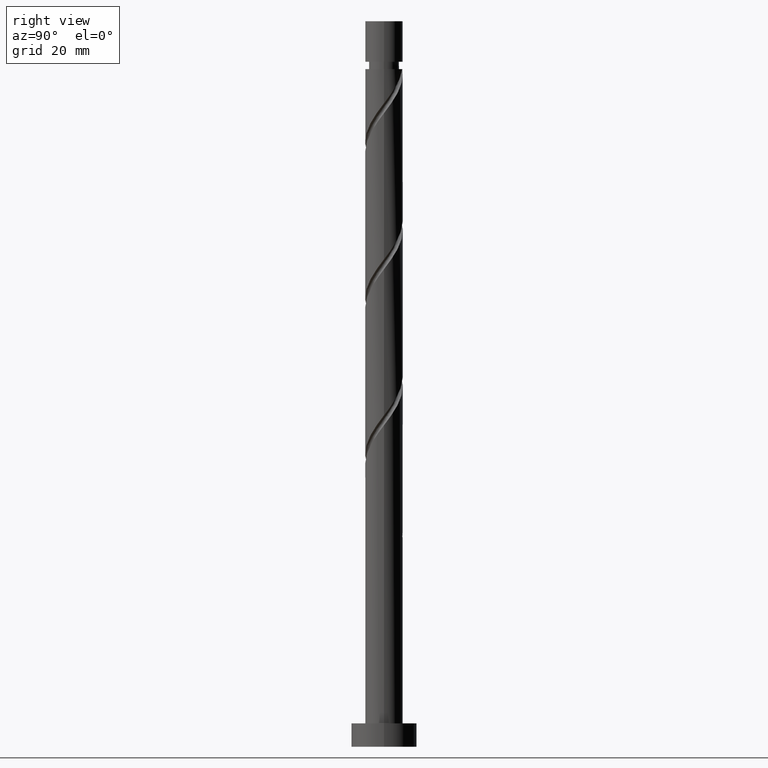
[diagram: clean part render]
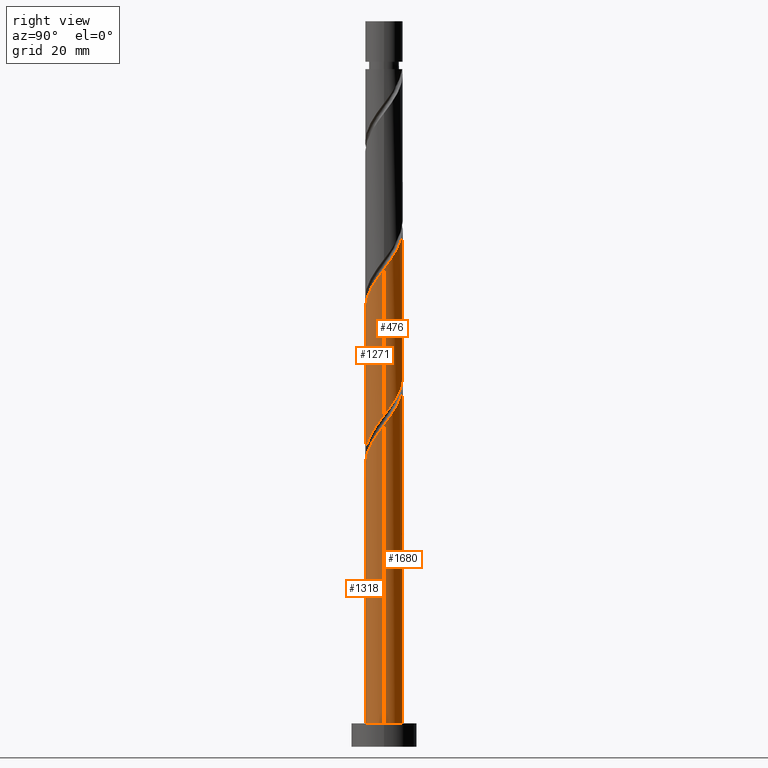
[diagram: same view with one multi-face feature highlighted, each face labeled with its STEP entity id]
A machine part, right view. The highlighted faces form ONE feature: a constant-radius fillet chain: 4 tangent blend faces with common blend radius 4 mm. The faces share edges in the B-rep.
Their STEP definitions:
[1] entity #1318 (Cylinder):
#15 = CARTESIAN_POINT ( 'NONE',  ( 4.000000000000006217, -0.1229678066307010459, 68.52512430396971865 ) ) ;
#68 = CARTESIAN_POINT ( 'NONE',  ( -2.996824607992357503, -2.649347517584565992, 55.86296575831904931 ) ) ;
#88 = CARTESIAN_POINT ( 'NONE',  ( 0.000000000000000000, 0.000000000000000000, 5.000000000000000000 ) ) ;
#94 = EDGE_CURVE ( 'NONE', #552, #378, #1333, .T. ) ;
#113 = VECTOR ( 'NONE', #1573, 1000.000000000000000 ) ;
#142 = CARTESIAN_POINT ( 'NONE',  ( 0.000000000000000000, 0.000000000000000000, 155.0000000000000000 ) ) ;
#207 = CARTESIAN_POINT ( 'NONE',  ( -2.209008691072459563, -3.334708473430082698, 57.25185464720792794 ) ) ;
#222 = CARTESIAN_POINT ( 'NONE',  ( -3.920000000000006146, -0.7959899496852959055, 53.08518798054127075 ) ) ;
#257 = CARTESIAN_POINT ( 'NONE',  ( 2.254808073111003175, -3.345617825659334521, 63.50185464720794926 ) ) ;
#334 = AXIS2_PLACEMENT_3D ( 'NONE', #142, #1743, #1356 ) ;
#341 = CARTESIAN_POINT ( 'NONE',  ( -4.000000000000006217, -1.091626264384269838E-15, 52.02162132533119632 ) ) ;
#356 = ORIENTED_EDGE ( 'NONE', *, *, #1159, .T. ) ;
#376 = CARTESIAN_POINT ( 'NONE',  ( 3.960099130553270452, -0.7713189730113449993, 67.66852131387460645 ) ) ;
#378 = VERTEX_POINT ( 'NONE', #1381 ) ;
#395 = CARTESIAN_POINT ( 'NONE',  ( 3.992446597741906800, -0.2457034069343226046, 68.36296575831904931 ) ) ;
#458 = CARTESIAN_POINT ( 'NONE',  ( -4.000000000000006217, -1.091626264384269838E-15, 52.02162132533119632 ) ) ;
#466 = CARTESIAN_POINT ( 'NONE',  ( 1.312067740227888413, -3.815205935069474030, 62.11296575831904931 ) ) ;
#490 = ORIENTED_EDGE ( 'NONE', *, *, #1180, .F. ) ;
#491 = CARTESIAN_POINT ( 'NONE',  ( -2.648031390325384038, -3.043886962058127921, 56.55741020276350639 ) ) ;
#500 = CARTESIAN_POINT ( 'NONE',  ( -0.7713189730113432230, -3.960099130553272229, 59.33518798054127785 ) ) ;
#501 = VECTOR ( 'NONE', #891, 1000.000000000000000 ) ;
#530 = AXIS2_PLACEMENT_3D ( 'NONE', #88, #590, #859 ) ;
#537 = CARTESIAN_POINT ( 'NONE',  ( 2.649347517584565548, -2.996824607992357947, 64.19629909165237791 ) ) ;
#552 = VERTEX_POINT ( 'NONE', #458 ) ;
#560 = CIRCLE ( 'NONE', #530, 4.000000000000000000 ) ;
#590 = DIRECTION ( 'NONE',  ( 0.000000000000000000, 0.000000000000000000, 1.000000000000000000 ) ) ;
#602 = CARTESIAN_POINT ( 'NONE',  ( 0.7959899496852955725, -3.920000000000006146, 61.41852131387459224 ) ) ;
#728 = CARTESIAN_POINT ( 'NONE',  ( -3.815205935069474030, -1.312067740227888635, 53.77963242498570651 ) ) ;
#781 = CARTESIAN_POINT ( 'NONE',  ( 3.792814557677652854, -1.270652482415441709, 66.97407686943017779 ) ) ;
#792 = CARTESIAN_POINT ( 'NONE',  ( 3.625529984802036143, -1.769985991819538196, 66.27963242498573493 ) ) ;
#859 = DIRECTION ( 'NONE',  ( 1.000000000000000000, 0.000000000000000000, 0.000000000000000000 ) ) ;
#891 = DIRECTION ( 'NONE',  ( -0.000000000000000000, -0.000000000000000000, -1.000000000000000000 ) ) ;
#895 = EDGE_CURVE ( 'NONE', #552, #1423, #1631, .T. ) ;
#912 = CARTESIAN_POINT ( 'NONE',  ( 4.000000000000006217, -1.420609522143912636E-15, 68.68828799199785351 ) ) ;
#929 = CYLINDRICAL_SURFACE ( 'NONE', #334, 4.000000000000000000 ) ;
#1012 = CARTESIAN_POINT ( 'NONE',  ( 1.783437906669445239, -3.580411880364402943, 62.80741020276347797 ) ) ;
#1025 = LINE ( 'NONE', #1292, #501 ) ;
#1030 = CARTESIAN_POINT ( 'NONE',  ( -1.769985991819538196, -3.625529984802036587, 57.94629909165239923 ) ) ;
#1109 = ORIENTED_EDGE ( 'NONE', *, *, #94, .T. ) ;
#1139 = CARTESIAN_POINT ( 'NONE',  ( -0.2457034069343206062, -3.992446597741906800, 60.02963242498571361 ) ) ;
#1159 = EDGE_CURVE ( 'NONE', #378, #1205, #560, .T. ) ;
#1180 = EDGE_CURVE ( 'NONE', #1423, #1205, #1025, .T. ) ;
#1196 = EDGE_LOOP ( 'NONE', ( #490, #1597, #1109, #356 ) ) ;
#1205 = VERTEX_POINT ( 'NONE', #1548 ) ;
#1292 = CARTESIAN_POINT ( 'NONE',  ( 4.000000000000000000, 4.898587196589412829E-16, 155.0000000000000000 ) ) ;
#1316 = CARTESIAN_POINT ( 'NONE',  ( -3.345617825659333633, -2.254808073111004951, 55.16852131387461355 ) ) ;
#1318 = ADVANCED_FACE ( 'NONE', ( #1591 ), #929, .T. ) ;
#1333 = LINE ( 'NONE', #1707, #113 ) ;
#1356 = DIRECTION ( 'NONE',  ( -1.000000000000000000, 0.000000000000000000, 0.000000000000000000 ) ) ;
#1381 = CARTESIAN_POINT ( 'NONE',  ( -4.000000000000000000, 0.000000000000000000, 5.000000000000000000 ) ) ;
#1423 = VERTEX_POINT ( 'NONE', #912 ) ;
#1434 = CARTESIAN_POINT ( 'NONE',  ( -4.000000000000007994, -0.4020151261036785106, 52.55504769452046077 ) ) ;
#1456 = CARTESIAN_POINT ( 'NONE',  ( 3.334708473430080922, -2.209008691072461339, 65.58518798054127785 ) ) ;
#1464 = CARTESIAN_POINT ( 'NONE',  ( 3.043886962058127921, -2.648031390325384038, 64.89074353609682078 ) ) ;
#1548 = CARTESIAN_POINT ( 'NONE',  ( 4.000000000000000000, 4.898587196589412829E-16, 5.000000000000000000 ) ) ;
#1573 = DIRECTION ( 'NONE',  ( -0.000000000000000000, -0.000000000000000000, -1.000000000000000000 ) ) ;
#1591 = FACE_OUTER_BOUND ( 'NONE', #1196, .T. ) ;
#1595 = CARTESIAN_POINT ( 'NONE',  ( 4.000000000000006217, -1.420609522143912636E-15, 68.68828799199785351 ) ) ;
#1597 = ORIENTED_EDGE ( 'NONE', *, *, #895, .F. ) ;
#1631 =( BOUNDED_CURVE ( )  B_SPLINE_CURVE ( 2, ( #341, #1434, #222, #728, #1709, #1316, #68, #491, #207, #1030, #1718, #500, #1139, #1681, #602, #466, #1012, #257, #537, #1464, #1456, #792, #781, #376, #395, #15, #1595 ),
 .UNSPECIFIED., .F., .T. ) 
 B_SPLINE_CURVE_WITH_KNOTS ( ( 3, 2, 2, 2, 2, 2, 2, 2, 2, 2, 2, 2, 2, 3 ),
 ( 0.05453176698144621137, 0.06250000000000000000, 0.07291666666666662966, 0.08333333333333337034, 0.09375000000000000000, 0.1041666666666666297, 0.1145833333333333703, 0.1250000000000000000, 0.1354166666666666297, 0.1458333333333333703, 0.1562500000000000000, 0.1666666666666666297, 0.1770833333333333703, 0.1795317669814462669 ),
 .UNSPECIFIED. ) 
 CURVE ( )  GEOMETRIC_REPRESENTATION_ITEM ( )  RATIONAL_B_SPLINE_CURVE ( ( 0.9062941362546417245, 0.9031415850403458068, 0.9090909090909213841, 0.9013135103398396408, 0.9090909090909213841, 0.9013135103398396408, 0.9090909090909213841, 0.9013135103398396408, 0.9090909090909213841, 0.9013135103398396408, 0.9090909090909213841, 0.9013135103398396408, 0.9090909090909213841, 0.9013135103398396408, 0.9090909090909213841, 0.9013135103398396408, 0.9090909090909213841, 0.9013135103398396408, 0.9090909090909213841, 0.9013135103398396408, 0.9090909090909213841, 0.9013135103398396408, 0.9090909090909213841, 0.9013135103398396408, 0.9090909090909213841, 0.9072628343904151071, 0.9062941362546417245 ) ) 
 REPRESENTATION_ITEM ( '' )  );
#1681 = CARTESIAN_POINT ( 'NONE',  ( 0.2799121591427021216, -4.024794064930541815, 60.72407686943014937 ) ) ;
#1707 = CARTESIAN_POINT ( 'NONE',  ( -4.000000000000000000, 0.000000000000000000, 155.0000000000000000 ) ) ;
#1709 = CARTESIAN_POINT ( 'NONE',  ( -3.580411880364402499, -1.783437906669446349, 54.47407686943017069 ) ) ;
#1718 = CARTESIAN_POINT ( 'NONE',  ( -1.270652482415441042, -3.792814557677652854, 58.64074353609682788 ) ) ;
#1743 = DIRECTION ( 'NONE',  ( -0.000000000000000000, -0.000000000000000000, -1.000000000000000000 ) ) ;
[2] entity #1680 (Cylinder):
#24 = CARTESIAN_POINT ( 'NONE',  ( -1.783437906669446349, 3.580411880364402499, 46.14074353609682078 ) ) ;
#32 = CARTESIAN_POINT ( 'NONE',  ( 0.000000000000000000, 0.000000000000000000, 155.0000000000000000 ) ) ;
#62 =( BOUNDED_CURVE ( )  B_SPLINE_CURVE ( 2, ( #1432, #90, #771, #1324, #375, #507, #1036, #489, #481, #82, #628, #1019, #1425, #355, #1584 ),
 .UNSPECIFIED., .F., .T. ) 
 B_SPLINE_CURVE_WITH_KNOTS ( ( 3, 2, 2, 2, 2, 2, 2, 3 ),
 ( 0.9295317669814463502, 0.9375000000000000000, 0.9479166666666666297, 0.9583333333333333703, 0.9687500000000000000, 0.9791666666666666297, 0.9895833333333333703, 1.000000000000000000 ),
 .UNSPECIFIED. ) 
 CURVE ( )  GEOMETRIC_REPRESENTATION_ITEM ( )  RATIONAL_B_SPLINE_CURVE ( ( 0.9062941362546350632, 0.9031415850403395895, 0.9090909090909148338, 0.9013135103398334236, 0.9090909090909148338, 0.9013135103398334236, 0.9090909090909148338, 0.9013135103398334236, 0.9090909090909148338, 0.9013135103398334236, 0.9090909090909148338, 0.9013135103398334236, 0.9090909090909148338, 0.9013135103398334236, 0.9090909090909148338 ) ) 
 REPRESENTATION_ITEM ( '' )  );
#63 = EDGE_CURVE ( 'NONE', #1423, #1687, #1641, .T. ) ;
#73 = VERTEX_POINT ( 'NONE', #385 ) ;
#82 = CARTESIAN_POINT ( 'NONE',  ( -1.769985991819533089, 3.625529984802031702, 48.22407686943014937 ) ) ;
#90 = CARTESIAN_POINT ( 'NONE',  ( -4.000000000000000000, 0.4020151261036866153, 53.61532826656205231 ) ) ;
#94 = EDGE_CURVE ( 'NONE', #552, #378, #1333, .T. ) ;
#108 = CARTESIAN_POINT ( 'NONE',  ( -3.043886962058128809, 2.648031390325383150, 81.55741020276350639 ) ) ;
#113 = VECTOR ( 'NONE', #1573, 1000.000000000000000 ) ;
#120 = CARTESIAN_POINT ( 'NONE',  ( -3.960099130553272229, 0.7713189730113430009, 84.33518798054127785 ) ) ;
#130 = EDGE_CURVE ( 'NONE', #73, #1101, #62, .T. ) ;
#160 = CARTESIAN_POINT ( 'NONE',  ( -0.7959899496852951284, 3.920000000000006146, 44.75185464720793505 ) ) ;
#177 = CARTESIAN_POINT ( 'NONE',  ( -4.000000000000006217, -1.091626264384269838E-15, 85.35495465866453912 ) ) ;
#203 = CARTESIAN_POINT ( 'NONE',  ( 0.7959899496852966827, 3.920000000000001705, 44.75185464720793505 ) ) ;
#217 = CARTESIAN_POINT ( 'NONE',  ( -4.000000000000000000, 0.000000000000000000, 155.0000000000000000 ) ) ;
#225 = VECTOR ( 'NONE', #337, 1000.000000000000000 ) ;
#254 = AXIS2_PLACEMENT_3D ( 'NONE', #579, #509, #1447 ) ;
#295 = DIRECTION ( 'NONE',  ( -1.000000000000000000, 0.000000000000000000, 0.000000000000000000 ) ) ;
#308 = ORIENTED_EDGE ( 'NONE', *, *, #1712, .T. ) ;
#337 = DIRECTION ( 'NONE',  ( -0.000000000000000000, -0.000000000000000000, -1.000000000000000000 ) ) ;
#349 = CARTESIAN_POINT ( 'NONE',  ( -0.7959899496852951284, 3.920000000000006146, 44.75185464720793505 ) ) ;
#355 = CARTESIAN_POINT ( 'NONE',  ( 0.2799121591427037870, 4.024794064930534709, 45.44629909165236370 ) ) ;
#375 = CARTESIAN_POINT ( 'NONE',  ( -3.580411880364395838, 1.783437906669445239, 51.69629909165237081 ) ) ;
#378 = VERTEX_POINT ( 'NONE', #1381 ) ;
#385 = CARTESIAN_POINT ( 'NONE',  ( -4.000000000000000888, 3.185156086491111378E-15, 54.14875463575133097 ) ) ;
#399 = EDGE_CURVE ( 'NONE', #1205, #378, #611, .T. ) ;
#413 = CARTESIAN_POINT ( 'NONE',  ( -2.649347517584566436, 2.996824607992357503, 47.52963242498572072 ) ) ;
#439 = CARTESIAN_POINT ( 'NONE',  ( 4.000000000000006217, -1.420609522143912636E-15, 68.68828799199785351 ) ) ;
#450 = CARTESIAN_POINT ( 'NONE',  ( 2.996824607992359724, 2.649347517584564216, 72.52963242498569230 ) ) ;
#458 = CARTESIAN_POINT ( 'NONE',  ( -4.000000000000006217, -1.091626264384269838E-15, 52.02162132533119632 ) ) ;
#470 = ORIENTED_EDGE ( 'NONE', *, *, #1585, .F. ) ;
#481 = CARTESIAN_POINT ( 'NONE',  ( -2.209008691072455122, 3.334708473430077813, 48.91852131387459224 ) ) ;
#489 = CARTESIAN_POINT ( 'NONE',  ( -2.648031390325376488, 3.043886962058124812, 49.61296575831903510 ) ) ;
#501 = VECTOR ( 'NONE', #891, 1000.000000000000000 ) ;
#507 = CARTESIAN_POINT ( 'NONE',  ( -3.345617825659326972, 2.254808073111001843, 51.00185464720794215 ) ) ;
#509 = DIRECTION ( 'NONE',  ( 0.000000000000000000, -0.000000000000000000, -1.000000000000000000 ) ) ;
#510 = ORIENTED_EDGE ( 'NONE', *, *, #94, .F. ) ;
#518 = EDGE_LOOP ( 'NONE', ( #1026, #1157, #1003, #510, #470, #308, #619, #1186 ) ) ;
#547 = DIRECTION ( 'NONE',  ( -0.000000000000000000, -0.000000000000000000, -1.000000000000000000 ) ) ;
#552 = VERTEX_POINT ( 'NONE', #458 ) ;
#570 = CARTESIAN_POINT ( 'NONE',  ( 4.000000000000007105, 0.4020151261036786217, 69.22171436118712506 ) ) ;
#579 = CARTESIAN_POINT ( 'NONE',  ( 0.000000000000000000, 0.000000000000000000, 44.75185464720793505 ) ) ;
#591 = CARTESIAN_POINT ( 'NONE',  ( 2.209008691072460007, 3.334708473430082254, 73.91852131387460645 ) ) ;
#611 = CIRCLE ( 'NONE', #1500, 4.000000000000000000 ) ;
#619 = ORIENTED_EDGE ( 'NONE', *, *, #130, .F. ) ;
#628 = CARTESIAN_POINT ( 'NONE',  ( -1.270652482415436380, 3.792814557677647525, 47.52963242498572072 ) ) ;
#637 = CARTESIAN_POINT ( 'NONE',  ( -3.334708473430082698, 2.209008691072459563, 82.25185464720793505 ) ) ;
#670 = CARTESIAN_POINT ( 'NONE',  ( -3.334708473430082698, 2.209008691072459563, 48.91852131387459934 ) ) ;
#678 = CARTESIAN_POINT ( 'NONE',  ( -3.960099130553272229, 0.7713189730113430009, 51.00185464720794926 ) ) ;
#686 = CARTESIAN_POINT ( 'NONE',  ( -2.254808073111005395, 3.345617825659332745, 46.83518798054127785 ) ) ;
#700 = DIRECTION ( 'NONE',  ( 1.000000000000000000, 0.000000000000000000, 0.000000000000000000 ) ) ;
#715 = CARTESIAN_POINT ( 'NONE',  ( 1.270652482415441709, 3.792814557677652409, 75.30741020276349218 ) ) ;
#724 = CARTESIAN_POINT ( 'NONE',  ( -0.2799121591426995681, 4.024794064930541815, 77.39074353609684920 ) ) ;
#744 = CARTESIAN_POINT ( 'NONE',  ( -4.000000000000006217, -1.091626264384269838E-15, 85.35495465866453912 ) ) ;
#771 = CARTESIAN_POINT ( 'NONE',  ( -3.920000000000000817, 0.7959899496852957945, 53.08518798054127075 ) ) ;
#846 = CARTESIAN_POINT ( 'NONE',  ( 3.345617825659334521, 2.254808073111002731, 71.83518798054127785 ) ) ;
#847 = CARTESIAN_POINT ( 'NONE',  ( -3.792814557677653742, 1.270652482415439710, 50.30741020276349929 ) ) ;
#851 = CARTESIAN_POINT ( 'NONE',  ( 2.648031390325384926, 3.043886962058127033, 73.22407686943016358 ) ) ;
#874 = VERTEX_POINT ( 'NONE', #349 ) ;
#891 = DIRECTION ( 'NONE',  ( -0.000000000000000000, -0.000000000000000000, -1.000000000000000000 ) ) ;
#906 = CARTESIAN_POINT ( 'NONE',  ( -3.992446597741906800, 0.2457034069343203841, 85.02963242498570651 ) ) ;
#912 = CARTESIAN_POINT ( 'NONE',  ( 4.000000000000006217, -1.420609522143912636E-15, 68.68828799199785351 ) ) ;
#973 = CARTESIAN_POINT ( 'NONE',  ( 3.815205935069474030, 1.312067740227888413, 70.44629909165237791 ) ) ;
#980 = CARTESIAN_POINT ( 'NONE',  ( 0.2457034069343228821, 3.992446597741906800, 76.69629909165239212 ) ) ;
#988 = CARTESIAN_POINT ( 'NONE',  ( 1.769985991819538862, 3.625529984802036143, 74.61296575831907774 ) ) ;
#1003 = ORIENTED_EDGE ( 'NONE', *, *, #399, .T. ) ;
#1014 = CARTESIAN_POINT ( 'NONE',  ( -1.312067740227889079, 3.815205935069472698, 78.77963242498573493 ) ) ;
#1019 = CARTESIAN_POINT ( 'NONE',  ( -0.7713189730113407805, 3.960099130553264679, 46.83518798054127075 ) ) ;
#1025 = LINE ( 'NONE', #1292, #501 ) ;
#1026 = ORIENTED_EDGE ( 'NONE', *, *, #63, .F. ) ;
#1028 = CARTESIAN_POINT ( 'NONE',  ( -4.000000000000005329, 0.1229678066307027529, 85.19179097063636164 ) ) ;
#1036 = CARTESIAN_POINT ( 'NONE',  ( -2.996824607992351730, 2.649347517584563771, 50.30741020276349218 ) ) ;
#1039 = CARTESIAN_POINT ( 'NONE',  ( -0.7959899496852952394, 3.920000000000006146, 78.08518798054126364 ) ) ;
#1097 = CARTESIAN_POINT ( 'NONE',  ( -1.312067740227889079, 3.815205935069472698, 45.44629909165238502 ) ) ;
#1101 = VERTEX_POINT ( 'NONE', #203 ) ;
#1114 = CARTESIAN_POINT ( 'NONE',  ( -4.000000000000006217, 0.1229678066307013373, 51.85845763730304725 ) ) ;
#1116 = CARTESIAN_POINT ( 'NONE',  ( 0.000000000000000000, 0.000000000000000000, 5.000000000000000000 ) ) ;
#1127 = EDGE_CURVE ( 'NONE', #1687, #73, #1406, .T. ) ;
#1157 = ORIENTED_EDGE ( 'NONE', *, *, #1180, .T. ) ;
#1173 = CARTESIAN_POINT ( 'NONE',  ( -2.254808073111005395, 3.345617825659332745, 80.16852131387460645 ) ) ;
#1180 = EDGE_CURVE ( 'NONE', #1423, #1205, #1025, .T. ) ;
#1182 = CARTESIAN_POINT ( 'NONE',  ( -3.625529984802037475, 1.769985991819537308, 82.94629909165239212 ) ) ;
#1186 = ORIENTED_EDGE ( 'NONE', *, *, #1127, .F. ) ;
#1205 = VERTEX_POINT ( 'NONE', #1548 ) ;
#1228 = CYLINDRICAL_SURFACE ( 'NONE', #1274, 4.000000000000000000 ) ;
#1245 = CARTESIAN_POINT ( 'NONE',  ( -3.625529984802037475, 1.769985991819537308, 49.61296575831903510 ) ) ;
#1253 = CARTESIAN_POINT ( 'NONE',  ( -3.992446597741906800, 0.2457034069343203841, 51.69629909165237791 ) ) ;
#1274 = AXIS2_PLACEMENT_3D ( 'NONE', #32, #547, #295 ) ;
#1292 = CARTESIAN_POINT ( 'NONE',  ( 4.000000000000000000, 4.898587196589412829E-16, 155.0000000000000000 ) ) ;
#1295 = CARTESIAN_POINT ( 'NONE',  ( -2.649347517584566436, 2.996824607992357503, 80.86296575831904931 ) ) ;
#1324 = CARTESIAN_POINT ( 'NONE',  ( -3.815205935069465593, 1.312067740227887302, 52.39074353609681367 ) ) ;
#1333 = LINE ( 'NONE', #1707, #113 ) ;
#1381 = CARTESIAN_POINT ( 'NONE',  ( -4.000000000000000000, 0.000000000000000000, 5.000000000000000000 ) ) ;
#1387 = FACE_OUTER_BOUND ( 'NONE', #518, .T. ) ;
#1394 =( BOUNDED_CURVE ( )  B_SPLINE_CURVE ( 2, ( #160, #1097, #24, #686, #413, #1511, #670, #1245, #847, #678, #1253, #1114, #1495 ),
 .UNSPECIFIED., .F., .T. ) 
 B_SPLINE_CURVE_WITH_KNOTS ( ( 3, 2, 2, 2, 2, 2, 3 ),
 ( 0.000000000000000000, 0.01041666666666662966, 0.02083333333333337034, 0.03125000000000000000, 0.04166666666666662966, 0.05208333333333337034, 0.05453176698144621137 ),
 .UNSPECIFIED. ) 
 CURVE ( )  GEOMETRIC_REPRESENTATION_ITEM ( )  RATIONAL_B_SPLINE_CURVE ( ( 0.9090909090909213841, 0.9013135103398396408, 0.9090909090909213841, 0.9013135103398396408, 0.9090909090909213841, 0.9013135103398396408, 0.9090909090909213841, 0.9013135103398396408, 0.9090909090909213841, 0.9013135103398396408, 0.9090909090909213841, 0.9072628343904152182, 0.9062941362546417245 ) ) 
 REPRESENTATION_ITEM ( '' )  );
#1406 = LINE ( 'NONE', #217, #225 ) ;
#1408 = DIRECTION ( 'NONE',  ( 0.000000000000000000, 0.000000000000000000, 1.000000000000000000 ) ) ;
#1423 = VERTEX_POINT ( 'NONE', #912 ) ;
#1425 = CARTESIAN_POINT ( 'NONE',  ( -0.2457034069343182192, 3.992446597741900582, 46.14074353609681367 ) ) ;
#1432 = CARTESIAN_POINT ( 'NONE',  ( -4.000000000000000888, 3.185156086491111378E-15, 54.14875463575133097 ) ) ;
#1447 = DIRECTION ( 'NONE',  ( -1.000000000000000000, 0.000000000000000000, 0.000000000000000000 ) ) ;
#1495 = CARTESIAN_POINT ( 'NONE',  ( -4.000000000000006217, -1.091626264384269838E-15, 52.02162132533119632 ) ) ;
#1500 = AXIS2_PLACEMENT_3D ( 'NONE', #1116, #1408, #700 ) ;
#1511 = CARTESIAN_POINT ( 'NONE',  ( -3.043886962058128809, 2.648031390325383150, 48.22407686943017069 ) ) ;
#1526 = CARTESIAN_POINT ( 'NONE',  ( 3.580411880364402943, 1.783437906669444795, 71.14074353609682078 ) ) ;
#1548 = CARTESIAN_POINT ( 'NONE',  ( 4.000000000000000000, 4.898587196589412829E-16, 5.000000000000000000 ) ) ;
#1573 = DIRECTION ( 'NONE',  ( -0.000000000000000000, -0.000000000000000000, -1.000000000000000000 ) ) ;
#1584 = CARTESIAN_POINT ( 'NONE',  ( 0.7959899496852966827, 3.920000000000002149, 44.75185464720793505 ) ) ;
#1585 = EDGE_CURVE ( 'NONE', #874, #552, #1394, .T. ) ;
#1641 =( BOUNDED_CURVE ( )  B_SPLINE_CURVE ( 2, ( #439, #570, #1655, #973, #1526, #846, #450, #851, #591, #988, #715, #1686, #980, #724, #1039, #1014, #1703, #1173, #1295, #108, #637, #1182, #1717, #120, #906, #1028, #744 ),
 .UNSPECIFIED., .F., .T. ) 
 B_SPLINE_CURVE_WITH_KNOTS ( ( 3, 2, 2, 2, 2, 2, 2, 2, 2, 2, 2, 2, 2, 3 ),
 ( 0.1795317669814462669, 0.1875000000000000000, 0.1979166666666666297, 0.2083333333333333703, 0.2187500000000000000, 0.2291666666666666297, 0.2395833333333333703, 0.2500000000000000000, 0.2604166666666666297, 0.2708333333333333703, 0.2812500000000000000, 0.2916666666666666297, 0.3020833333333333703, 0.3045317669814461836 ),
 .UNSPECIFIED. ) 
 CURVE ( )  GEOMETRIC_REPRESENTATION_ITEM ( )  RATIONAL_B_SPLINE_CURVE ( ( 0.9062941362546417245, 0.9031415850403459178, 0.9090909090909213841, 0.9013135103398396408, 0.9090909090909213841, 0.9013135103398396408, 0.9090909090909213841, 0.9013135103398396408, 0.9090909090909213841, 0.9013135103398396408, 0.9090909090909213841, 0.9013135103398396408, 0.9090909090909213841, 0.9013135103398396408, 0.9090909090909213841, 0.9013135103398396408, 0.9090909090909213841, 0.9013135103398396408, 0.9090909090909213841, 0.9013135103398396408, 0.9090909090909213841, 0.9013135103398396408, 0.9090909090909213841, 0.9013135103398396408, 0.9090909090909213841, 0.9072628343904152182, 0.9062941362546417245 ) ) 
 REPRESENTATION_ITEM ( '' )  );
#1655 = CARTESIAN_POINT ( 'NONE',  ( 3.920000000000006146, 0.7959899496852955725, 69.75185464720793505 ) ) ;
#1664 = CIRCLE ( 'NONE', #254, 4.000000000000000000 ) ;
#1680 = ADVANCED_FACE ( 'NONE', ( #1387 ), #1228, .T. ) ;
#1686 = CARTESIAN_POINT ( 'NONE',  ( 0.7713189730113452214, 3.960099130553270452, 76.00185464720794926 ) ) ;
#1687 = VERTEX_POINT ( 'NONE', #177 ) ;
#1703 = CARTESIAN_POINT ( 'NONE',  ( -1.783437906669446349, 3.580411880364402499, 79.47407686943017779 ) ) ;
#1707 = CARTESIAN_POINT ( 'NONE',  ( -4.000000000000000000, 0.000000000000000000, 155.0000000000000000 ) ) ;
#1712 = EDGE_CURVE ( 'NONE', #874, #1101, #1664, .T. ) ;
#1717 = CARTESIAN_POINT ( 'NONE',  ( -3.792814557677653742, 1.270652482415439710, 83.64074353609683499 ) ) ;
[3] entity #1271 (Cylinder):
#14 = CARTESIAN_POINT ( 'NONE',  ( -2.254808073111001843, -3.345617825659326972, 59.33518798054126364 ) ) ;
#34 = CARTESIAN_POINT ( 'NONE',  ( 0.7959899496852955725, -3.920000000000006146, 94.75185464720793505 ) ) ;
#43 = CARTESIAN_POINT ( 'NONE',  ( 2.254808073111003175, -3.345617825659334521, 96.83518798054130627 ) ) ;
#73 = VERTEX_POINT ( 'NONE', #385 ) ;
#133 = ORIENTED_EDGE ( 'NONE', *, *, #379, .F. ) ;
#154 = CARTESIAN_POINT ( 'NONE',  ( -3.992446597741900582, -0.2457034069343177751, 54.47407686943015648 ) ) ;
#177 = CARTESIAN_POINT ( 'NONE',  ( -4.000000000000006217, -1.091626264384269838E-15, 85.35495465866453912 ) ) ;
#179 = CARTESIAN_POINT ( 'NONE',  ( -1.769985991819538196, -3.625529984802036587, 91.27963242498572072 ) ) ;
#212 = CARTESIAN_POINT ( 'NONE',  ( 4.000000000000000888, -4.172105859770047659E-15, 70.81542130241800237 ) ) ;
#217 = CARTESIAN_POINT ( 'NONE',  ( -4.000000000000000000, 0.000000000000000000, 155.0000000000000000 ) ) ;
#225 = VECTOR ( 'NONE', #337, 1000.000000000000000 ) ;
#242 = EDGE_CURVE ( 'NONE', #453, #73, #1518, .T. ) ;
#259 = ORIENTED_EDGE ( 'NONE', *, *, #343, .F. ) ;
#272 = CARTESIAN_POINT ( 'NONE',  ( -0.7959899496852961276, -3.920000000000000817, 61.41852131387459934 ) ) ;
#282 = AXIS2_PLACEMENT_3D ( 'NONE', #1053, #372, #397 ) ;
#290 = CARTESIAN_POINT ( 'NONE',  ( 1.769985991819531534, -3.625529984802031702, 64.89074353609680657 ) ) ;
#298 = CARTESIAN_POINT ( 'NONE',  ( 1.312067740227888413, -3.815205935069474030, 95.44629909165239212 ) ) ;
#314 = CARTESIAN_POINT ( 'NONE',  ( -0.2457034069343206062, -3.992446597741906800, 93.36296575831903510 ) ) ;
#337 = DIRECTION ( 'NONE',  ( -0.000000000000000000, -0.000000000000000000, -1.000000000000000000 ) ) ;
#338 = VERTEX_POINT ( 'NONE', #1342 ) ;
#343 = EDGE_CURVE ( 'NONE', #1687, #338, #426, .T. ) ;
#372 = DIRECTION ( 'NONE',  ( -0.000000000000000000, -0.000000000000000000, -1.000000000000000000 ) ) ;
#379 = EDGE_CURVE ( 'NONE', #338, #453, #978, .T. ) ;
#385 = CARTESIAN_POINT ( 'NONE',  ( -4.000000000000000888, 3.185156086491111378E-15, 54.14875463575133097 ) ) ;
#394 = CARTESIAN_POINT ( 'NONE',  ( 0.7713189730113384490, -3.960099130553264679, 63.50185464720792083 ) ) ;
#397 = DIRECTION ( 'NONE',  ( -1.000000000000000000, 0.000000000000000000, 0.000000000000000000 ) ) ;
#401 = CARTESIAN_POINT ( 'NONE',  ( 0.2457034069343166371, -3.992446597741900582, 62.80741020276349218 ) ) ;
#417 = CARTESIAN_POINT ( 'NONE',  ( -4.000000000000006217, -1.091626264384269838E-15, 85.35495465866453912 ) ) ;
#426 =( BOUNDED_CURVE ( )  B_SPLINE_CURVE ( 2, ( #417, #1621, #1064, #1613, #953, #1480, #1530, #1389, #427, #179, #1247, #1659, #314, #1107, #34, #298, #565, #43, #1650, #434, #967, #695, #960, #849, #831, #1397, #1514 ),
 .UNSPECIFIED., .F., .T. ) 
 B_SPLINE_CURVE_WITH_KNOTS ( ( 3, 2, 2, 2, 2, 2, 2, 2, 2, 2, 2, 2, 2, 3 ),
 ( 0.3045317669814461836, 0.3125000000000000000, 0.3229166666666666297, 0.3333333333333333703, 0.3437500000000000000, 0.3541666666666666297, 0.3645833333333333703, 0.3750000000000000000, 0.3854166666666666297, 0.3958333333333333703, 0.4062500000000000000, 0.4166666666666666297, 0.4270833333333333703, 0.4295317669814465722 ),
 .UNSPECIFIED. ) 
 CURVE ( )  GEOMETRIC_REPRESENTATION_ITEM ( )  RATIONAL_B_SPLINE_CURVE ( ( 0.9062941362546417245, 0.9031415850403456957, 0.9090909090909213841, 0.9013135103398396408, 0.9090909090909213841, 0.9013135103398396408, 0.9090909090909213841, 0.9013135103398396408, 0.9090909090909213841, 0.9013135103398396408, 0.9090909090909213841, 0.9013135103398396408, 0.9090909090909213841, 0.9013135103398396408, 0.9090909090909213841, 0.9013135103398396408, 0.9090909090909213841, 0.9013135103398396408, 0.9090909090909213841, 0.9013135103398396408, 0.9090909090909213841, 0.9013135103398396408, 0.9090909090909213841, 0.9013135103398396408, 0.9090909090909213841, 0.9072628343904148851, 0.9062941362546415025 ) ) 
 REPRESENTATION_ITEM ( '' )  );
#427 = CARTESIAN_POINT ( 'NONE',  ( -2.209008691072459563, -3.334708473430082698, 90.58518798054126364 ) ) ;
#434 = CARTESIAN_POINT ( 'NONE',  ( 3.043886962058127921, -2.648031390325384038, 98.22407686943016358 ) ) ;
#453 = VERTEX_POINT ( 'NONE', #1267 ) ;
#531 = EDGE_LOOP ( 'NONE', ( #133, #259, #1087, #659 ) ) ;
#565 = CARTESIAN_POINT ( 'NONE',  ( 1.783437906669445239, -3.580411880364402943, 96.14074353609680657 ) ) ;
#659 = ORIENTED_EDGE ( 'NONE', *, *, #242, .F. ) ;
#665 = CARTESIAN_POINT ( 'NONE',  ( -1.783437906669445683, -3.580411880364395838, 60.02963242498570651 ) ) ;
#681 = CARTESIAN_POINT ( 'NONE',  ( 2.209008691072453345, -3.334708473430078701, 65.58518798054127785 ) ) ;
#695 = CARTESIAN_POINT ( 'NONE',  ( 3.625529984802036143, -1.769985991819538196, 99.61296575831904931 ) ) ;
#713 = CARTESIAN_POINT ( 'NONE',  ( 4.000000000000000000, 4.898587196589412829E-16, 155.0000000000000000 ) ) ;
#780 = CARTESIAN_POINT ( 'NONE',  ( 3.345617825659326083, -2.254808073111003619, 67.66852131387460645 ) ) ;
#806 = CARTESIAN_POINT ( 'NONE',  ( -4.000000000000000888, 3.185156086491111378E-15, 54.14875463575133097 ) ) ;
#824 = CARTESIAN_POINT ( 'NONE',  ( -4.000000000000000888, -0.1229678066306920114, 54.31191832377948003 ) ) ;
#831 = CARTESIAN_POINT ( 'NONE',  ( 3.992446597741906800, -0.2457034069343226046, 101.6962990916523637 ) ) ;
#849 = CARTESIAN_POINT ( 'NONE',  ( 3.960099130553270452, -0.7713189730113449993, 101.0018546472079350 ) ) ;
#923 = CARTESIAN_POINT ( 'NONE',  ( -2.649347517584564660, -2.996824607992351286, 58.64074353609682788 ) ) ;
#939 = CARTESIAN_POINT ( 'NONE',  ( -1.312067740227889079, -3.815205935069465593, 60.72407686943014227 ) ) ;
#953 = CARTESIAN_POINT ( 'NONE',  ( -3.580411880364402499, -1.783437906669446349, 87.80741020276350639 ) ) ;
#960 = CARTESIAN_POINT ( 'NONE',  ( 3.792814557677652854, -1.270652482415441709, 100.3074102027634780 ) ) ;
#967 = CARTESIAN_POINT ( 'NONE',  ( 3.334708473430080922, -2.209008691072461339, 98.91852131387462066 ) ) ;
#978 = LINE ( 'NONE', #713, #1066 ) ;
#1043 = CYLINDRICAL_SURFACE ( 'NONE', #282, 4.000000000000000000 ) ;
#1053 = CARTESIAN_POINT ( 'NONE',  ( 0.000000000000000000, 0.000000000000000000, 155.0000000000000000 ) ) ;
#1064 = CARTESIAN_POINT ( 'NONE',  ( -3.920000000000006146, -0.7959899496852959055, 86.41852131387462066 ) ) ;
#1066 = VECTOR ( 'NONE', #1255, 1000.000000000000000 ) ;
#1087 = ORIENTED_EDGE ( 'NONE', *, *, #1127, .T. ) ;
#1100 = CARTESIAN_POINT ( 'NONE',  ( -3.334708473430077813, -2.209008691072454234, 57.25185464720792794 ) ) ;
#1107 = CARTESIAN_POINT ( 'NONE',  ( 0.2799121591427021216, -4.024794064930541815, 94.05741020276350639 ) ) ;
#1127 = EDGE_CURVE ( 'NONE', #1687, #73, #1406, .T. ) ;
#1164 = CARTESIAN_POINT ( 'NONE',  ( 3.815205935069463816, -1.312067740227890411, 69.05741020276347797 ) ) ;
#1178 = FACE_OUTER_BOUND ( 'NONE', #531, .T. ) ;
#1231 = CARTESIAN_POINT ( 'NONE',  ( 1.270652482415435713, -3.792814557677647525, 64.19629909165237791 ) ) ;
#1247 = CARTESIAN_POINT ( 'NONE',  ( -1.270652482415441042, -3.792814557677652854, 91.97407686943013516 ) ) ;
#1255 = DIRECTION ( 'NONE',  ( -0.000000000000000000, -0.000000000000000000, -1.000000000000000000 ) ) ;
#1267 = CARTESIAN_POINT ( 'NONE',  ( 4.000000000000000888, -4.172105859770047659E-15, 70.81542130241800237 ) ) ;
#1271 = ADVANCED_FACE ( 'NONE', ( #1178 ), #1043, .T. ) ;
#1342 = CARTESIAN_POINT ( 'NONE',  ( 4.000000000000006217, -1.420609522143912636E-15, 102.0216213253312105 ) ) ;
#1359 = CARTESIAN_POINT ( 'NONE',  ( -0.2799121591427048972, -4.024794064930534709, 62.11296575831904221 ) ) ;
#1375 = CARTESIAN_POINT ( 'NONE',  ( -3.792814557677647525, -1.270652482415436157, 55.86296575831904931 ) ) ;
#1389 = CARTESIAN_POINT ( 'NONE',  ( -2.648031390325384038, -3.043886962058127921, 89.89074353609683499 ) ) ;
#1397 = CARTESIAN_POINT ( 'NONE',  ( 4.000000000000007105, -0.1229678066306857248, 101.8584576373030757 ) ) ;
#1406 = LINE ( 'NONE', #217, #225 ) ;
#1443 = CARTESIAN_POINT ( 'NONE',  ( 3.580411880364395394, -1.783437906669447237, 68.36296575831903510 ) ) ;
#1463 = CARTESIAN_POINT ( 'NONE',  ( 3.920000000000000817, -0.7959899496852963496, 69.75185464720794926 ) ) ;
#1480 = CARTESIAN_POINT ( 'NONE',  ( -3.345617825659333633, -2.254808073111004951, 88.50185464720796347 ) ) ;
#1498 = CARTESIAN_POINT ( 'NONE',  ( -3.043886962058126144, -2.648031390325375156, 57.94629909165237791 ) ) ;
#1507 = CARTESIAN_POINT ( 'NONE',  ( -3.625529984802031702, -1.769985991819531534, 56.55741020276347086 ) ) ;
#1514 = CARTESIAN_POINT ( 'NONE',  ( 4.000000000000006217, -1.420609522143912636E-15, 102.0216213253312105 ) ) ;
#1518 =( BOUNDED_CURVE ( )  B_SPLINE_CURVE ( 2, ( #212, #1594, #1463, #1164, #1443, #780, #1603, #1699, #681, #290, #1231, #394, #401, #1359, #272, #939, #665, #14, #923, #1498, #1100, #1507, #1375, #1746, #154, #824, #806 ),
 .UNSPECIFIED., .F., .T. ) 
 B_SPLINE_CURVE_WITH_KNOTS ( ( 3, 2, 2, 2, 2, 2, 2, 2, 2, 2, 2, 2, 2, 3 ),
 ( 0.8045317669814463502, 0.8125000000000000000, 0.8229166666666666297, 0.8333333333333333703, 0.8437500000000000000, 0.8541666666666666297, 0.8645833333333333703, 0.8750000000000000000, 0.8854166666666666297, 0.8958333333333333703, 0.9062500000000000000, 0.9166666666666666297, 0.9270833333333333703, 0.9295317669814463502 ),
 .UNSPECIFIED. ) 
 CURVE ( )  GEOMETRIC_REPRESENTATION_ITEM ( )  RATIONAL_B_SPLINE_CURVE ( ( 0.9062941362546350632, 0.9031415850403395895, 0.9090909090909148338, 0.9013135103398334236, 0.9090909090909148338, 0.9013135103398334236, 0.9090909090909148338, 0.9013135103398334236, 0.9090909090909148338, 0.9013135103398334236, 0.9090909090909148338, 0.9013135103398334236, 0.9090909090909148338, 0.9013135103398334236, 0.9090909090909148338, 0.9013135103398334236, 0.9090909090909148338, 0.9013135103398334236, 0.9090909090909148338, 0.9013135103398334236, 0.9090909090909148338, 0.9013135103398334236, 0.9090909090909148338, 0.9013135103398334236, 0.9090909090909148338, 0.9072628343904085568, 0.9062941362546350632 ) ) 
 REPRESENTATION_ITEM ( '' )  );
#1530 = CARTESIAN_POINT ( 'NONE',  ( -2.996824607992357503, -2.649347517584565992, 89.19629909165237791 ) ) ;
#1594 = CARTESIAN_POINT ( 'NONE',  ( 4.000000000000000000, -0.4020151261036871149, 70.28199493322873082 ) ) ;
#1603 = CARTESIAN_POINT ( 'NONE',  ( 2.996824607992351286, -2.649347517584565104, 66.97407686943014937 ) ) ;
#1613 = CARTESIAN_POINT ( 'NONE',  ( -3.815205935069474030, -1.312067740227888635, 87.11296575831904931 ) ) ;
#1621 = CARTESIAN_POINT ( 'NONE',  ( -4.000000000000008882, -0.4020151261036771784, 85.88838102785379647 ) ) ;
#1650 = CARTESIAN_POINT ( 'NONE',  ( 2.649347517584565548, -2.996824607992357947, 97.52963242498572072 ) ) ;
#1659 = CARTESIAN_POINT ( 'NONE',  ( -0.7713189730113432230, -3.960099130553272229, 92.66852131387459224 ) ) ;
#1687 = VERTEX_POINT ( 'NONE', #177 ) ;
#1699 = CARTESIAN_POINT ( 'NONE',  ( 2.648031390325375156, -3.043886962058126144, 66.27963242498570651 ) ) ;
#1746 = CARTESIAN_POINT ( 'NONE',  ( -3.960099130553264679, -0.7713189730113395592, 55.16852131387459224 ) ) ;
[4] entity #476 (Cylinder):
#2 = CARTESIAN_POINT ( 'NONE',  ( -2.649347517584566436, 2.996824607992357503, 114.1962990916523779 ) ) ;
#20 = CARTESIAN_POINT ( 'NONE',  ( 0.2457034069343228821, 3.992446597741906800, 110.0296324249857207 ) ) ;
#27 = CARTESIAN_POINT ( 'NONE',  ( 2.648031390325384926, 3.043886962058127033, 106.5574102027635206 ) ) ;
#38 = CARTESIAN_POINT ( 'NONE',  ( 0.000000000000000000, 0.000000000000000000, 155.0000000000000000 ) ) ;
#44 = VERTEX_POINT ( 'NONE', #872 ) ;
#75 = FACE_OUTER_BOUND ( 'NONE', #1515, .T. ) ;
#97 = CARTESIAN_POINT ( 'NONE',  ( -4.000000000000000000, 0.4020151261036866153, 86.94866159989535959 ) ) ;
#105 = CARTESIAN_POINT ( 'NONE',  ( 2.254808073111003619, 3.345617825659326083, 76.00185464720793505 ) ) ;
#129 = CARTESIAN_POINT ( 'NONE',  ( 3.580411880364402943, 1.783437906669444795, 104.4740768694301636 ) ) ;
#138 = CARTESIAN_POINT ( 'NONE',  ( 3.920000000000006146, 0.7959899496852955725, 103.0851879805412636 ) ) ;
#164 = ORIENTED_EDGE ( 'NONE', *, *, #1554, .F. ) ;
#168 = LINE ( 'NONE', #692, #811 ) ;
#182 = CARTESIAN_POINT ( 'NONE',  ( -4.000000000000000888, 3.185156086491111378E-15, 87.48208796908465956 ) ) ;
#194 = CARTESIAN_POINT ( 'NONE',  ( -0.2457034069343182192, 3.992446597741900582, 79.47407686943017779 ) ) ;
#228 = CARTESIAN_POINT ( 'NONE',  ( -2.209008691072455122, 3.334708473430077813, 82.25185464720793505 ) ) ;
#264 = CARTESIAN_POINT ( 'NONE',  ( 4.000000000000006217, -1.420609522143912636E-15, 102.0216213253312105 ) ) ;
#281 = CARTESIAN_POINT ( 'NONE',  ( -3.960099130553272229, 0.7713189730113430009, 117.6685213138746207 ) ) ;
#302 = DIRECTION ( 'NONE',  ( -0.000000000000000000, -0.000000000000000000, -1.000000000000000000 ) ) ;
#318 = EDGE_CURVE ( 'NONE', #338, #44, #1270, .T. ) ;
#330 = CARTESIAN_POINT ( 'NONE',  ( -1.769985991819533089, 3.625529984802031702, 81.55741020276347797 ) ) ;
#338 = VERTEX_POINT ( 'NONE', #1342 ) ;
#379 = EDGE_CURVE ( 'NONE', #338, #453, #978, .T. ) ;
#409 = CARTESIAN_POINT ( 'NONE',  ( -3.043886962058128809, 2.648031390325383150, 114.8907435360968066 ) ) ;
#453 = VERTEX_POINT ( 'NONE', #1267 ) ;
#455 = CARTESIAN_POINT ( 'NONE',  ( 0.7959899496852966827, 3.920000000000000817, 78.08518798054126364 ) ) ;
#463 = CARTESIAN_POINT ( 'NONE',  ( -3.920000000000000817, 0.7959899496852957945, 86.41852131387459224 ) ) ;
#476 = ADVANCED_FACE ( 'NONE', ( #75 ), #1251, .T. ) ;
#479 = CARTESIAN_POINT ( 'NONE',  ( -2.996824607992351730, 2.649347517584563771, 83.64074353609683499 ) ) ;
#504 = CARTESIAN_POINT ( 'NONE',  ( 3.792814557677648413, 1.270652482415434159, 72.52963242498572072 ) ) ;
#513 = CARTESIAN_POINT ( 'NONE',  ( 3.960099130553264679, 0.7713189730113382270, 71.83518798054124943 ) ) ;
#536 = CARTESIAN_POINT ( 'NONE',  ( -3.334708473430082698, 2.209008691072459563, 115.5851879805412779 ) ) ;
#544 = CARTESIAN_POINT ( 'NONE',  ( 4.000000000000003553, 0.4020151261036938872, 102.5550476945205247 ) ) ;
#550 = CARTESIAN_POINT ( 'NONE',  ( -1.783437906669446349, 3.580411880364402499, 112.8074102027634638 ) ) ;
#559 = CARTESIAN_POINT ( 'NONE',  ( -0.2799121591426995681, 4.024794064930541815, 110.7240768694301494 ) ) ;
#631 = ORIENTED_EDGE ( 'NONE', *, *, #379, .T. ) ;
#634 = CARTESIAN_POINT ( 'NONE',  ( 2.649347517584565104, 2.996824607992351286, 75.30741020276349218 ) ) ;
#648 = VERTEX_POINT ( 'NONE', #182 ) ;
#689 = CARTESIAN_POINT ( 'NONE',  ( 3.815205935069474030, 1.312067740227888413, 103.7796324249857634 ) ) ;
#692 = CARTESIAN_POINT ( 'NONE',  ( -4.000000000000000000, 0.000000000000000000, 155.0000000000000000 ) ) ;
#713 = CARTESIAN_POINT ( 'NONE',  ( 4.000000000000000000, 4.898587196589412829E-16, 155.0000000000000000 ) ) ;
#791 = CARTESIAN_POINT ( 'NONE',  ( -3.992446597741906800, 0.2457034069343203841, 118.3629657583190209 ) ) ;
#799 = CARTESIAN_POINT ( 'NONE',  ( 3.345617825659334521, 2.254808073111002731, 105.1685213138746349 ) ) ;
#811 = VECTOR ( 'NONE', #302, 1000.000000000000000 ) ;
#816 = CARTESIAN_POINT ( 'NONE',  ( -1.312067740227889079, 3.815205935069472698, 112.1129657583190493 ) ) ;
#867 = CARTESIAN_POINT ( 'NONE',  ( -1.270652482415436380, 3.792814557677647525, 80.86296575831903510 ) ) ;
#872 = CARTESIAN_POINT ( 'NONE',  ( -4.000000000000006217, 2.691681199851623516E-16, 118.6882879919978535 ) ) ;
#903 = CARTESIAN_POINT ( 'NONE',  ( 4.000000000000000888, -4.172105859770047659E-15, 70.81542130241800237 ) ) ;
#932 = CARTESIAN_POINT ( 'NONE',  ( 0.7713189730113452214, 3.960099130553270452, 109.3351879805412636 ) ) ;
#947 = CARTESIAN_POINT ( 'NONE',  ( -3.625529984802037475, 1.769985991819537308, 116.2796324249857349 ) ) ;
#962 =( BOUNDED_CURVE ( )  B_SPLINE_CURVE ( 2, ( #1151, #97, #463, #997, #1439, #1695, #479, #1017, #228, #330, #867, #1414, #194, #1670, #455, #987, #1540, #105, #634, #1714, #1724, #1321, #504, #513, #1750, #1600, #903 ),
 .UNSPECIFIED., .F., .T. ) 
 B_SPLINE_CURVE_WITH_KNOTS ( ( 3, 2, 2, 2, 2, 2, 2, 2, 2, 2, 2, 2, 2, 3 ),
 ( 0.6795317669814463502, 0.6875000000000000000, 0.6979166666666666297, 0.7083333333333333703, 0.7187500000000000000, 0.7291666666666666297, 0.7395833333333333703, 0.7500000000000000000, 0.7604166666666666297, 0.7708333333333333703, 0.7812500000000000000, 0.7916666666666666297, 0.8020833333333333703, 0.8045317669814463502 ),
 .UNSPECIFIED. ) 
 CURVE ( )  GEOMETRIC_REPRESENTATION_ITEM ( )  RATIONAL_B_SPLINE_CURVE ( ( 0.9062941362546350632, 0.9031415850403395895, 0.9090909090909148338, 0.9013135103398334236, 0.9090909090909148338, 0.9013135103398334236, 0.9090909090909148338, 0.9013135103398334236, 0.9090909090909148338, 0.9013135103398334236, 0.9090909090909148338, 0.9013135103398334236, 0.9090909090909148338, 0.9013135103398334236, 0.9090909090909148338, 0.9013135103398334236, 0.9090909090909148338, 0.9013135103398334236, 0.9090909090909148338, 0.9013135103398334236, 0.9090909090909148338, 0.9013135103398334236, 0.9090909090909148338, 0.9013135103398334236, 0.9090909090909148338, 0.9072628343904085568, 0.9062941362546350632 ) ) 
 REPRESENTATION_ITEM ( '' )  );
#978 = LINE ( 'NONE', #713, #1066 ) ;
#987 = CARTESIAN_POINT ( 'NONE',  ( 1.312067740227890855, 3.815205935069463816, 77.39074353609682078 ) ) ;
#997 = CARTESIAN_POINT ( 'NONE',  ( -3.815205935069465593, 1.312067740227887302, 85.72407686943014937 ) ) ;
#1007 = ORIENTED_EDGE ( 'NONE', *, *, #1215, .F. ) ;
#1017 = CARTESIAN_POINT ( 'NONE',  ( -2.648031390325376488, 3.043886962058124812, 82.94629909165237791 ) ) ;
#1066 = VECTOR ( 'NONE', #1255, 1000.000000000000000 ) ;
#1076 = CARTESIAN_POINT ( 'NONE',  ( -3.792814557677653742, 1.270652482415439710, 116.9740768694301494 ) ) ;
#1085 = CARTESIAN_POINT ( 'NONE',  ( 2.209008691072460007, 3.334708473430082254, 107.2518546472079208 ) ) ;
#1092 = CARTESIAN_POINT ( 'NONE',  ( -4.000000000000006217, 0.1229678066307012818, 118.5251243039696760 ) ) ;
#1138 = DIRECTION ( 'NONE',  ( -0.000000000000000000, -0.000000000000000000, -1.000000000000000000 ) ) ;
#1151 = CARTESIAN_POINT ( 'NONE',  ( -4.000000000000000888, 3.185156086491111378E-15, 87.48208796908465956 ) ) ;
#1210 = CARTESIAN_POINT ( 'NONE',  ( -0.7959899496852952394, 3.920000000000006146, 111.4185213138746064 ) ) ;
#1215 = EDGE_CURVE ( 'NONE', #648, #453, #962, .T. ) ;
#1238 = CARTESIAN_POINT ( 'NONE',  ( 2.996824607992359724, 2.649347517584564216, 105.8629657583190493 ) ) ;
#1251 = CYLINDRICAL_SURFACE ( 'NONE', #1578, 4.000000000000000000 ) ;
#1255 = DIRECTION ( 'NONE',  ( -0.000000000000000000, -0.000000000000000000, -1.000000000000000000 ) ) ;
#1267 = CARTESIAN_POINT ( 'NONE',  ( 4.000000000000000888, -4.172105859770047659E-15, 70.81542130241800237 ) ) ;
#1270 =( BOUNDED_CURVE ( )  B_SPLINE_CURVE ( 2, ( #264, #544, #138, #689, #129, #799, #1238, #27, #1085, #1470, #1628, #932, #20, #559, #1210, #816, #550, #1351, #2, #409, #536, #947, #1076, #281, #791, #1092, #1646 ),
 .UNSPECIFIED., .F., .T. ) 
 B_SPLINE_CURVE_WITH_KNOTS ( ( 3, 2, 2, 2, 2, 2, 2, 2, 2, 2, 2, 2, 2, 3 ),
 ( 0.4295317669814465722, 0.4375000000000000000, 0.4479166666666666297, 0.4583333333333333703, 0.4687500000000000000, 0.4791666666666666297, 0.4895833333333333703, 0.5000000000000000000, 0.5104166666666667407, 0.5208333333333332593, 0.5312500000000000000, 0.5416666666666667407, 0.5520833333333332593, 0.5545317669814461281 ),
 .UNSPECIFIED. ) 
 CURVE ( )  GEOMETRIC_REPRESENTATION_ITEM ( )  RATIONAL_B_SPLINE_CURVE ( ( 0.9062941362546415025, 0.9031415850403461398, 0.9090909090909213841, 0.9013135103398396408, 0.9090909090909213841, 0.9013135103398396408, 0.9090909090909213841, 0.9013135103398396408, 0.9090909090909213841, 0.9013135103398396408, 0.9090909090909213841, 0.9013135103398396408, 0.9090909090909213841, 0.9013135103398396408, 0.9090909090909213841, 0.9013135103398396408, 0.9090909090909213841, 0.9013135103398396408, 0.9090909090909213841, 0.9013135103398396408, 0.9090909090909213841, 0.9013135103398396408, 0.9090909090909213841, 0.9013135103398396408, 0.9090909090909213841, 0.9072628343904152182, 0.9062941362546417245 ) ) 
 REPRESENTATION_ITEM ( '' )  );
#1321 = CARTESIAN_POINT ( 'NONE',  ( 3.625529984802032146, 1.769985991819529536, 73.22407686943010674 ) ) ;
#1342 = CARTESIAN_POINT ( 'NONE',  ( 4.000000000000006217, -1.420609522143912636E-15, 102.0216213253312105 ) ) ;
#1351 = CARTESIAN_POINT ( 'NONE',  ( -2.254808073111005395, 3.345617825659332745, 113.5018546472079208 ) ) ;
#1414 = CARTESIAN_POINT ( 'NONE',  ( -0.7713189730113407805, 3.960099130553264679, 80.16852131387459224 ) ) ;
#1439 = CARTESIAN_POINT ( 'NONE',  ( -3.580411880364395838, 1.783437906669445239, 85.02963242498569230 ) ) ;
#1470 = CARTESIAN_POINT ( 'NONE',  ( 1.769985991819538862, 3.625529984802036143, 107.9462990916524063 ) ) ;
#1515 = EDGE_LOOP ( 'NONE', ( #1636, #631, #1007, #164 ) ) ;
#1540 = CARTESIAN_POINT ( 'NONE',  ( 1.783437906669447237, 3.580411880364395394, 76.69629909165237791 ) ) ;
#1554 = EDGE_CURVE ( 'NONE', #44, #648, #168, .T. ) ;
#1578 = AXIS2_PLACEMENT_3D ( 'NONE', #38, #1138, #1672 ) ;
#1600 = CARTESIAN_POINT ( 'NONE',  ( 4.000000000000000888, 0.1229678066306908735, 70.97858499044615144 ) ) ;
#1628 = CARTESIAN_POINT ( 'NONE',  ( 1.270652482415441709, 3.792814557677652409, 108.6407435360968208 ) ) ;
#1636 = ORIENTED_EDGE ( 'NONE', *, *, #318, .F. ) ;
#1646 = CARTESIAN_POINT ( 'NONE',  ( -4.000000000000006217, 2.691681199851624009E-16, 118.6882879919978535 ) ) ;
#1670 = CARTESIAN_POINT ( 'NONE',  ( 0.2799121591427037870, 4.024794064930534709, 78.77963242498572072 ) ) ;
#1672 = DIRECTION ( 'NONE',  ( -1.000000000000000000, 0.000000000000000000, 0.000000000000000000 ) ) ;
#1695 = CARTESIAN_POINT ( 'NONE',  ( -3.345617825659326972, 2.254808073111001843, 84.33518798054126364 ) ) ;
#1714 = CARTESIAN_POINT ( 'NONE',  ( 3.043886962058126144, 2.648031390325375156, 74.61296575831903510 ) ) ;
#1724 = CARTESIAN_POINT ( 'NONE',  ( 3.334708473430077813, 2.209008691072454234, 73.91852131387460645 ) ) ;
#1750 = CARTESIAN_POINT ( 'NONE',  ( 3.992446597741900582, 0.2457034069343164151, 71.14074353609682078 ) ) ;